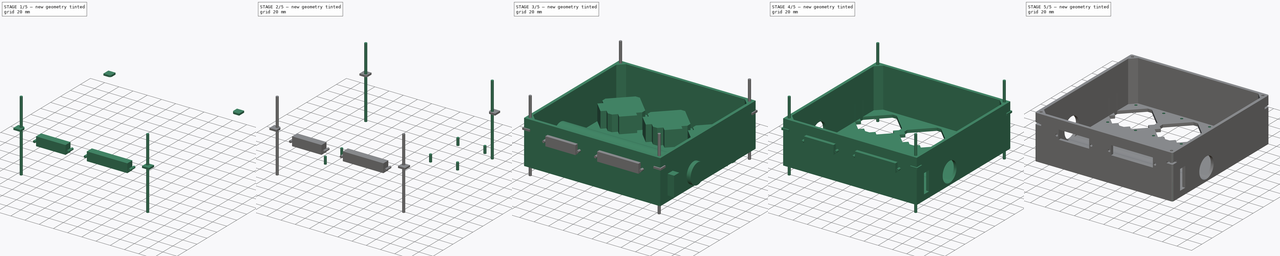
[diagram: build sequence overview — one tinted view per stage of 5, left to right]
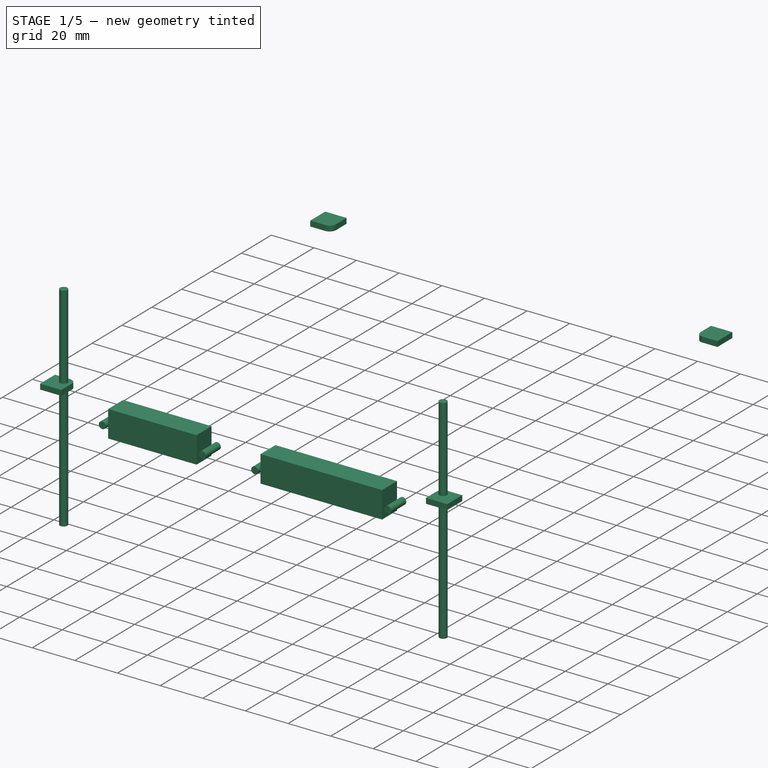
[diagram: stage 1 of 5 — iso view after this stage's code; geometry added in this stage tinted green]
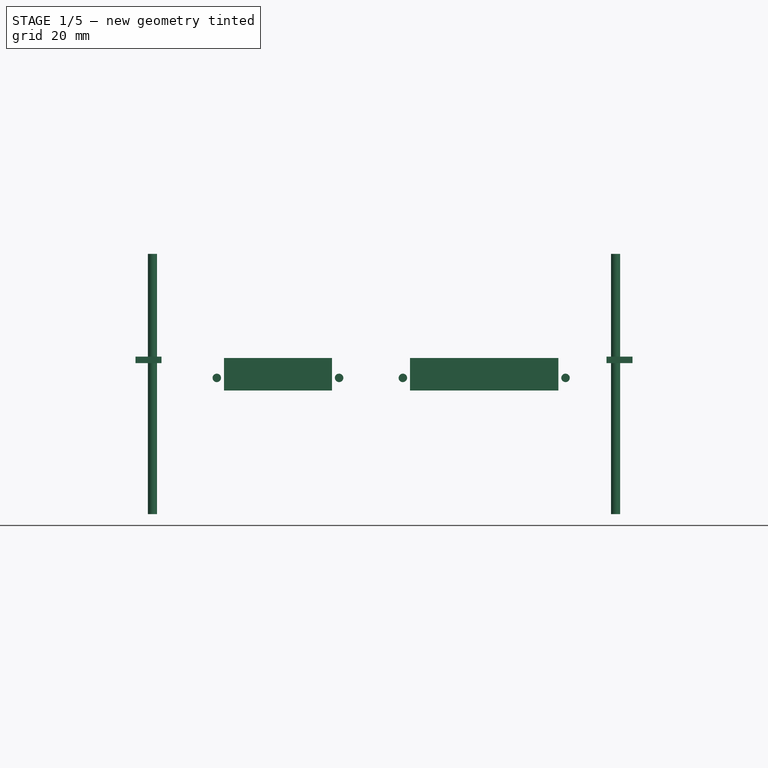
[diagram: stage 1 of 5 — front view after this stage's code; geometry added in this stage tinted green]
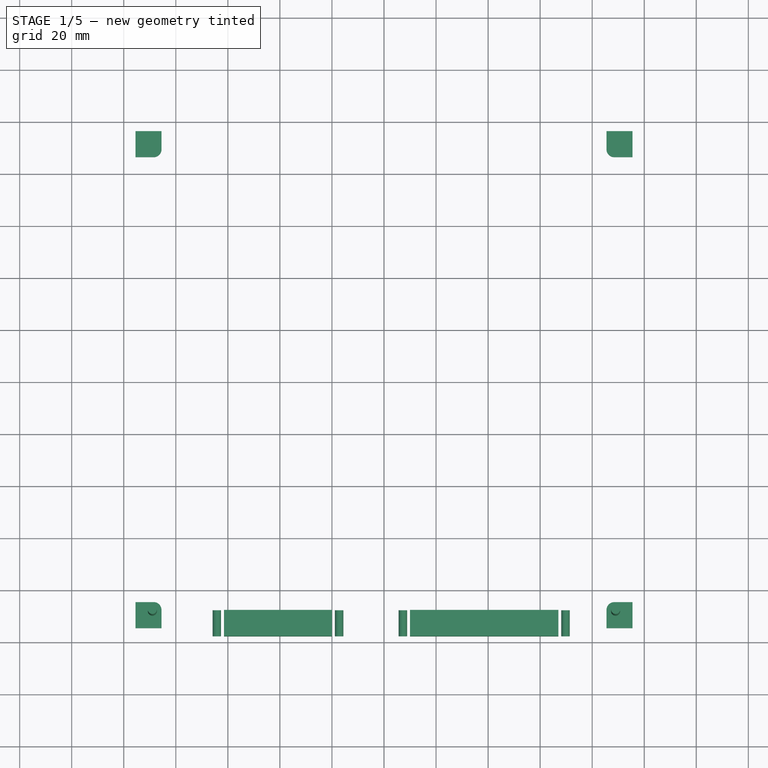
[diagram: stage 1 of 5 — top view after this stage's code; geometry added in this stage tinted green]
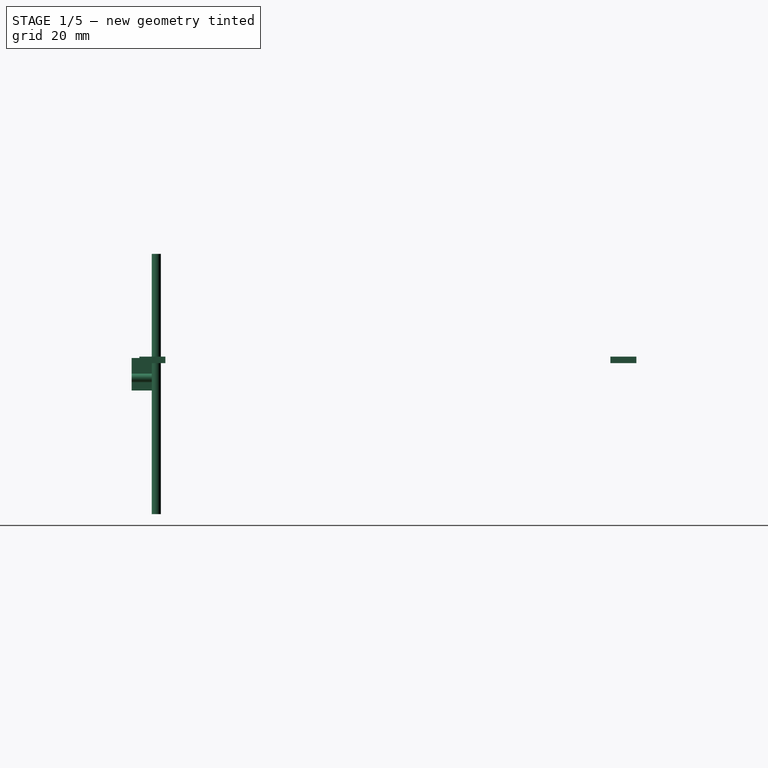
[diagram: stage 1 of 5 — right view after this stage's code; geometry added in this stage tinted green]
FCSTD DOCUMENT  (FreeCAD 1.0R38641 +678 (Git))
Label: pumps-box-v1.1
License: All rights reserved
LicenseURL: https://en.wikipedia.org/wiki/All_rights_reserved
objects: Part::Cylinder×23, Part::MultiFuse×16, Part::Cut×14, Part::Box×8, Part::Fillet×5, Sketcher::SketchObject×2, Part::Extrusion×2, Part::Fuse×2, Part::Chamfer×1, PartDesign::Body×1
note: 76 computed .brp shape members not serialized (recipe doc carries the construction recipe); baked Part::Feature solids carry a one-line shape summary decoded from their .brp

FEATURE [Part::Cylinder] Cylinder021
  Angle = 360
  AttacherType = Attacher::AttachEngine3D
  FirstAngle = 0
  Height = 100
  Placement = pos=(-89,-89,-12.5) rot=(0,0,1;0rad)
  Radius = 1.75
  SecondAngle = 0
FEATURE [Part::Cylinder] Cylinder022
  Angle = 360
  AttacherType = Attacher::AttachEngine3D
  FirstAngle = 0
  Height = 100
  Placement = pos=(89,-89,-12.5) rot=(0,0,1;0rad)
  Radius = 1.75
  SecondAngle = 0
FEATURE [Part::Box] Box010  label="Cube005"
  AttacherType = Attacher::AttachEngine3D
  Height = 2.5
  Length = 10
  Placement = pos=(-23.5,0,0) rot=(0,0,1;0rad)
  Width = 10
FEATURE [Part::Box] Box011  label="Cube006"
  AttacherType = Attacher::AttachEngine3D
  Height = 2.5
  Length = 10
  Placement = pos=(0,22.5,0) rot=(0,0,1;0rad)
  Width = 10
FEATURE [Part::Box] Box012  label="Cube007"
  AttacherType = Attacher::AttachEngine3D
  Height = 2.5
  Length = 10
  Placement = pos=(-25,23,0) rot=(0,0,1;0rad)
  Width = 10
FEATURE [Part::Box] Box013  label="Cube008"
  AttacherType = Attacher::AttachEngine3D
  Height = 2.5
  Length = 10
  Width = 10
FEATURE [Part::Fillet] Fillet005
  Base = -> Box010
  EdgeLinks = -> Box010 [Edge7]
  Edges = 1 edges r=3: [Edge7]
  Placement = pos=(-72,-95.5,45.5) rot=(0,0,1;0rad)
FEATURE [Part::Fillet] Fillet006
  Base = -> Box013
  EdgeLinks = -> Box013 [Edge3]
  Edges = 1 edges r=3: [Edge3]
  Placement = pos=(85.5,-95.5,45.5) rot=(0,0,1;0rad)
FEATURE [Part::Fillet] Fillet007
  Base = -> Box012
  EdgeLinks = -> Box012 [Edge5]
  Edges = 1 edges r=3: [Edge5]
  Placement = pos=(-70.5,62.5,45.5) rot=(0,0,1;0rad)
FEATURE [Part::Fillet] Fillet008
  Base = -> Box011
  EdgeLinks = -> Box011 [Edge1]
  Edges = 1 edges r=3: [Edge1]
  Placement = pos=(85.5,63,45.5) rot=(0,0,1;0rad)
FEATURE [Part::MultiFuse] Fusion018
  Shapes = -> [Fillet005,Fillet006]
FEATURE [Part::MultiFuse] Fusion019
  Shapes = -> [Fusion018,Fillet008]
FEATURE [Part::MultiFuse] Fusion020  label="Nut slot cuts001"
  Shapes = -> [Fusion019,Fillet007]
FEATURE [Sketcher::SketchObject] Sketch002  label="Connector Hole Sketch"
  ArcFitTolerance = 0
  AttachmentSupport = -> [Cut014]
  FullyConstrained = true
  MakeInternals = false
  MapMode = 5
  Placement = pos=(0,-94,0) rot=(1,0,0;1.5708rad)
  sketch-geometry (12):
    g0: LineSegment StartX=-61.5 StartY=0 StartZ=0 EndX=-20 EndY=0 EndZ=0
    g1: LineSegment StartX=-20 StartY=0 StartZ=0 EndX=-20 EndY=-12.5 EndZ=0
    g2: LineSegment StartX=-20 StartY=-12.5 StartZ=0 EndX=-61.5 EndY=-12.5 EndZ=0
    g3: LineSegment StartX=-61.5 StartY=-12.5 StartZ=0 EndX=-61.5 EndY=0 EndZ=0
    g4: LineSegment StartX=10 StartY=0 StartZ=0 EndX=67 EndY=0 EndZ=0
    g5: LineSegment StartX=67 StartY=0 StartZ=0 EndX=67 EndY=-12.5 EndZ=0
    g6: LineSegment StartX=67 StartY=-12.5 StartZ=0 EndX=10 EndY=-12.5 EndZ=0
    g7: LineSegment StartX=10 StartY=-12.5 StartZ=0 EndX=10 EndY=0 EndZ=0
    g8: Circle CenterX=-17.25 CenterY=-7.65 CenterZ=0 NormalX=0 NormalY=0 NormalZ=1 AngleXU=0 Radius=1.625
    g9: Circle CenterX=-64.25 CenterY=-7.65 CenterZ=0 NormalX=0 NormalY=0 NormalZ=1 AngleXU=0 Radius=1.625
    g10: Circle CenterX=7.25 CenterY=-7.65 CenterZ=0 NormalX=0 NormalY=0 NormalZ=1 AngleXU=0 Radius=1.625
    g11: Circle CenterX=69.75 CenterY=-7.65 CenterZ=0 NormalX=0 NormalY=0 NormalZ=1 AngleXU=0 Radius=1.625
  constraints (36):
    c: Coincident(g0,g1)
    c: Coincident(g1,g2)
    c: Coincident(g2,g3)
    c: Coincident(g3,g0)
    c: Horizontal(g0)
    c: Horizontal(g2)
    c: Vertical(g1)
    c: Vertical(g3)
    c: Coincident(g4,g5)
    c: Coincident(g5,g6)
    c: Coincident(g6,g7)
    c: Coincident(g7,g4)
    c: Horizontal(g4)
    c: Horizontal(g6)
    c: Vertical(g5)
    c: Vertical(g7)
    c: Distance(g0) = 41.5
    c: Distance(g1) = 12.5
    c: Distance(g5) = 12.5
    c: Distance(g4) = 57
    c: DistanceX(g0,g-1) = 20
    c: DistanceY(g0,g-1) = 0
    c: DistanceY(g4,g-1) = 0
    c: DistanceX(g-1,g4) = 10
    c: Equal(g11,g10)
    c: Equal(g11,g8)
    c: Equal(g11,g9)
    c: Diameter(g11) = 3.25
    c: DistanceX(g9,g2) = 2.75
    c: DistanceY(g2,g9) = 4.85
    c: DistanceY(g1,g8) = 4.85
    c: DistanceY(g6,g10) = 4.85
    c: DistanceY(g5,g11) = 4.85
    c: DistanceX(g1,g8) = 2.75
    c: DistanceX(g10,g6) = 2.75
    c: DistanceX(g5,g11) = 2.75
FEATURE [PartDesign::Body] Body001  label="Connector Hole Cuts"
  AllowCompound = false
  Group = -> [Sketch002]
  Origin = -> Origin001
  Placement = pos=(323,-3,52) rot=(1,0,0;1.5708rad)
FEATURE [Part::Extrusion] Extrude001
  Base = -> Sketch002
  Dir = (0,-1,2e-16)
  DirMode = 2
  FaceMakerClass = Part::FaceMakerBullseye
  FaceMakerMode = 3
  LengthFwd = 10
  LengthRev = 0
  Placement = pos=(0,5.5,47.5) rot=(0,0,1;0rad)
  Solid = true
  Symmetric = false
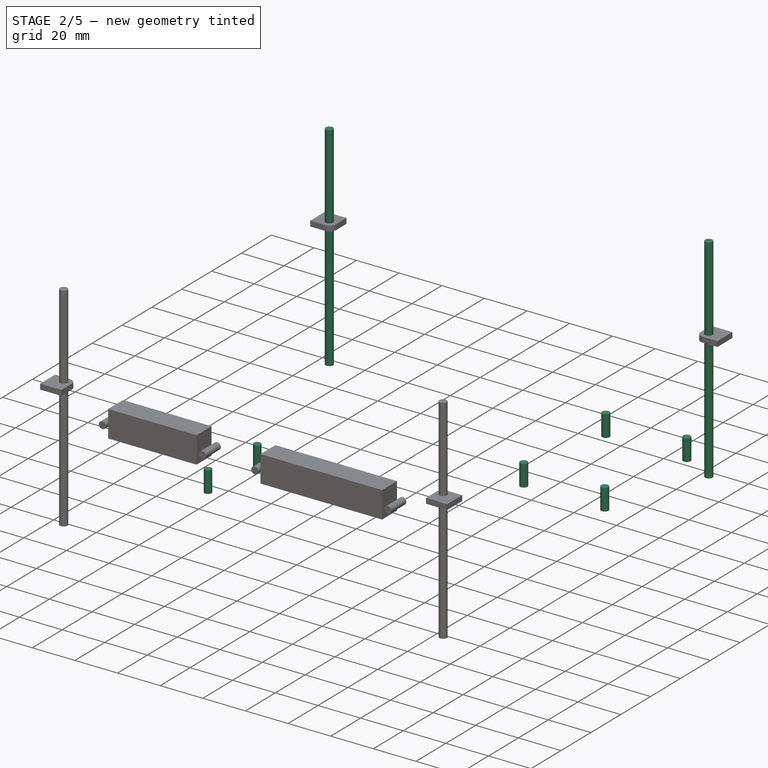
[diagram: stage 2 of 5 — iso view after this stage's code; geometry added in this stage tinted green]
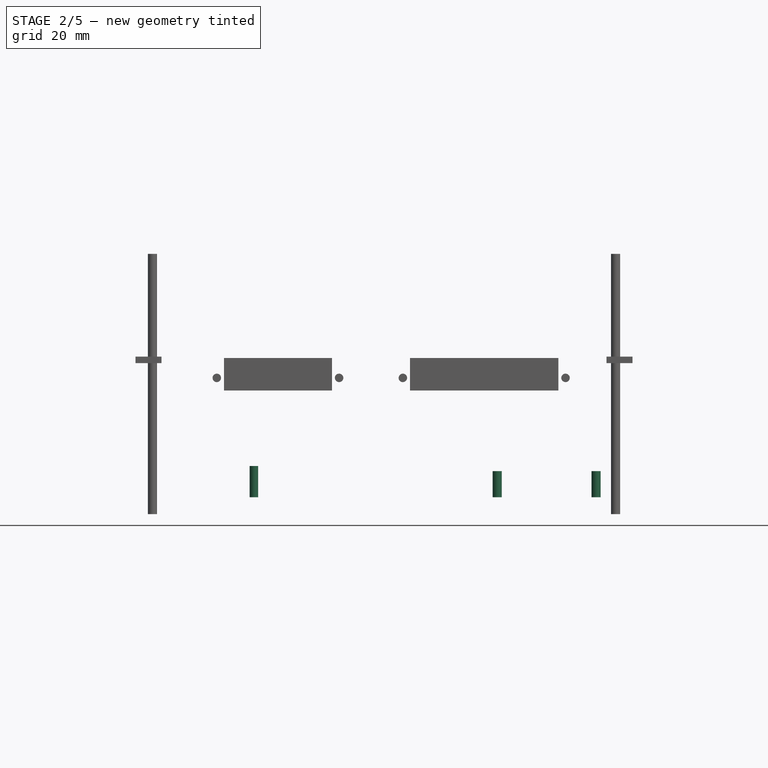
[diagram: stage 2 of 5 — front view after this stage's code; geometry added in this stage tinted green]
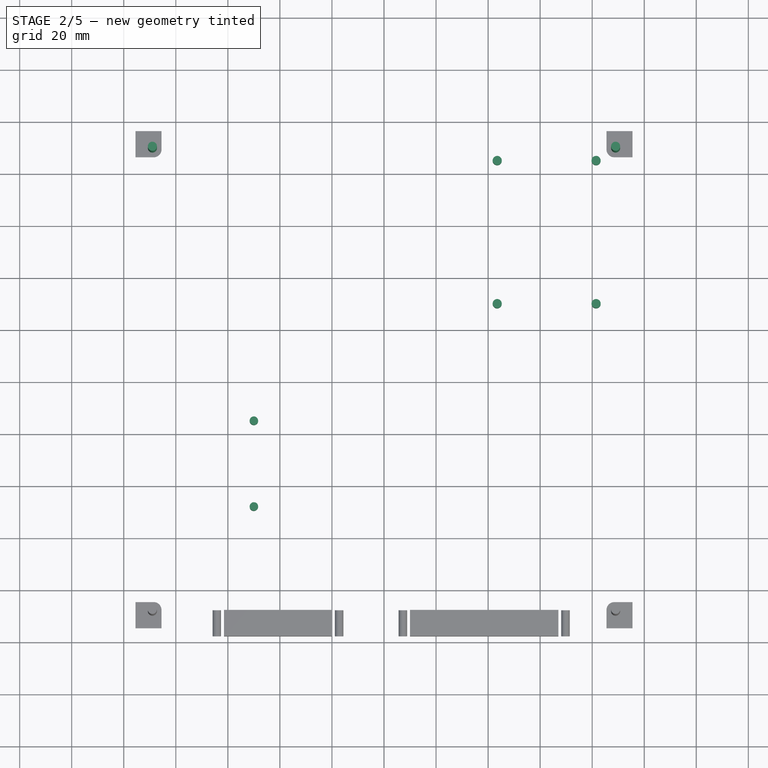
[diagram: stage 2 of 5 — top view after this stage's code; geometry added in this stage tinted green]
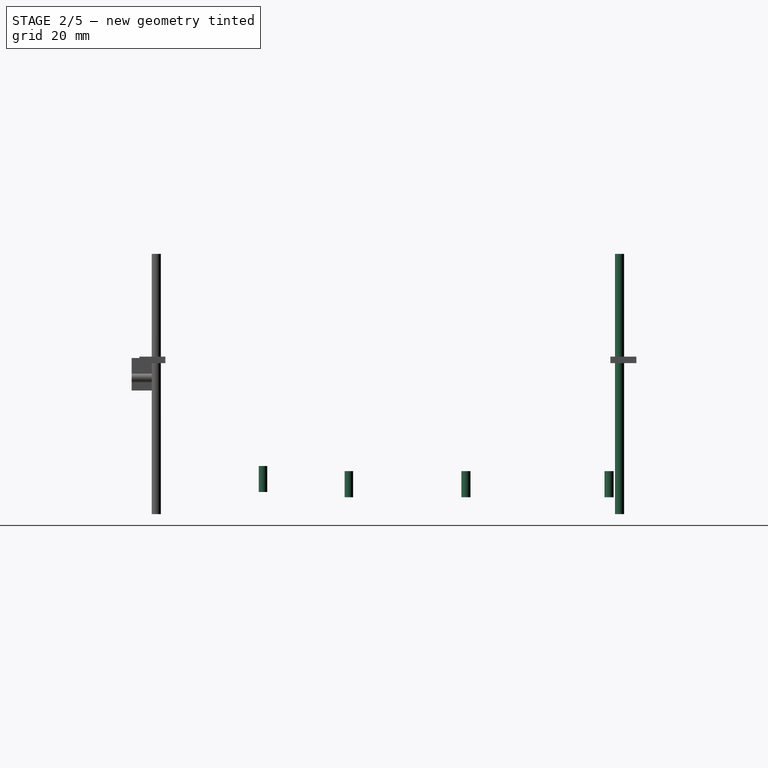
[diagram: stage 2 of 5 — right view after this stage's code; geometry added in this stage tinted green]
FEATURE [Part::Cylinder] Cylinder005  label="Circulation Pump Mounting Holes002"
  Angle = 360
  AttacherType = Attacher::AttachEngine3D
  FirstAngle = 0
  Height = 10
  Placement = pos=(-50,-15,-6) rot=(0,0,1;0rad)
  Radius = 1.625
  SecondAngle = 0
FEATURE [Part::Cylinder] Cylinder006  label="Circulation Pump Mounting Holes003"
  Angle = 360
  AttacherType = Attacher::AttachEngine3D
  FirstAngle = 0
  Height = 10
  Placement = pos=(-50,-48,-4) rot=(0,0,1;0rad)
  Radius = 1.625
  SecondAngle = 0
FEATURE [Part::Cylinder] Cylinder007  label="Stepper Screw Hole"
  Angle = 360
  AttacherType = Attacher::AttachEngine3D
  FirstAngle = 0
  Height = 10
  Placement = pos=(81.5,30,-6) rot=(0,0,1;0rad)
  Radius = 1.75
  SecondAngle = 0
FEATURE [Part::Cylinder] Cylinder008  label="Stepper Screw Hole001"
  Angle = 360
  AttacherType = Attacher::AttachEngine3D
  FirstAngle = 0
  Height = 10
  Placement = pos=(81.5,85,-6) rot=(0,0,1;0rad)
  Radius = 1.75
  SecondAngle = 0
FEATURE [Part::MultiFuse] Fusion006
  Shapes = -> [Cylinder007,Cylinder008]
FEATURE [Part::Cylinder] Cylinder009  label="Stepper Screw Hole002"
  Angle = 360
  AttacherType = Attacher::AttachEngine3D
  FirstAngle = 0
  Height = 10
  Placement = pos=(81.5,30,-6) rot=(0,0,1;0rad)
  Radius = 1.75
  SecondAngle = 0
FEATURE [Part::Cylinder] Cylinder010  label="Stepper Screw Hole003"
  Angle = 360
  AttacherType = Attacher::AttachEngine3D
  FirstAngle = 0
  Height = 10
  Placement = pos=(81.5,85,-6) rot=(0,0,1;0rad)
  Radius = 1.75
  SecondAngle = 0
FEATURE [Part::MultiFuse] Fusion007
  Placement = pos=(-38,0,0) rot=(0,0,1;0rad)
  Shapes = -> [Cylinder009,Cylinder010]
FEATURE [Part::MultiFuse] Fusion008  label="Stepper X Screw Hole Cuts"
  Shapes = -> [Fusion006,Fusion007]
FEATURE [Part::Cylinder] Cylinder019
  Angle = 360
  AttacherType = Attacher::AttachEngine3D
  FirstAngle = 0
  Height = 100
  Placement = pos=(-89,-89,-12.5) rot=(0,0,1;0rad)
  Radius = 1.75
  SecondAngle = 0
FEATURE [Part::Cylinder] Cylinder020
  Angle = 360
  AttacherType = Attacher::AttachEngine3D
  FirstAngle = 0
  Height = 100
  Placement = pos=(89,-89,-12.5) rot=(0,0,1;0rad)
  Radius = 1.75
  SecondAngle = 0
FEATURE [Part::MultiFuse] Fusion015
  Shapes = -> [Cylinder019,Cylinder020]
FEATURE [Part::MultiFuse] Fusion016
  Placement = pos=(0,178,0) rot=(0,0,1;0rad)
  Shapes = -> [Cylinder021,Cylinder022]
FEATURE [Part::MultiFuse] Fusion017  label="Corner Screw Holes001"
  Shapes = -> [Fusion015,Fusion016]
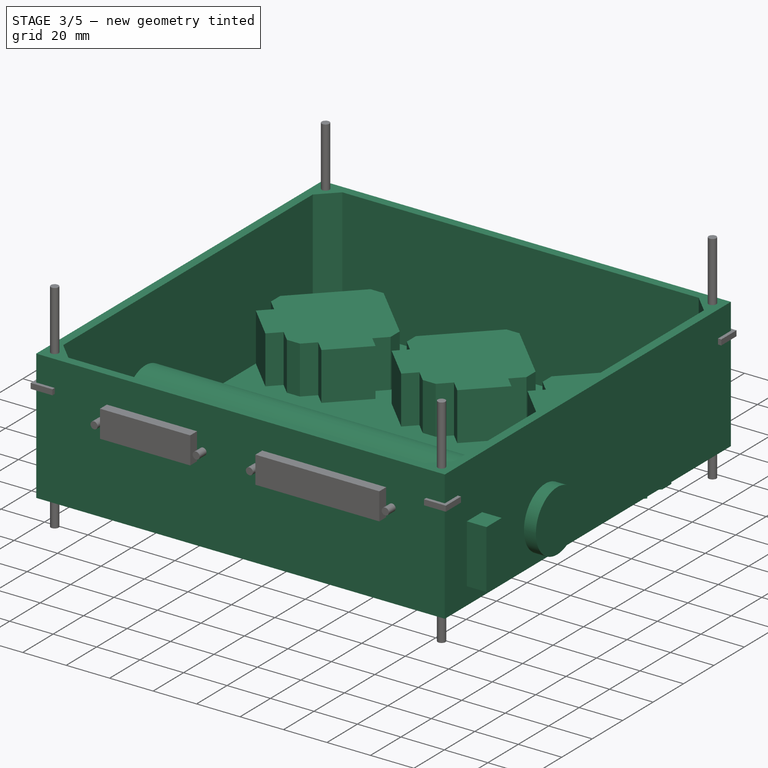
[diagram: stage 3 of 5 — iso view after this stage's code; geometry added in this stage tinted green]
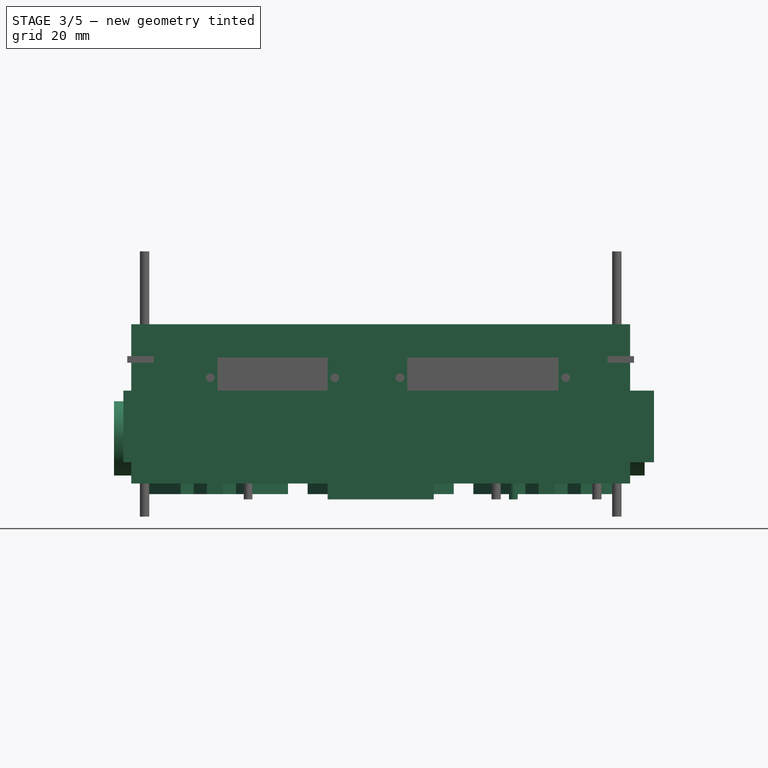
[diagram: stage 3 of 5 — front view after this stage's code; geometry added in this stage tinted green]
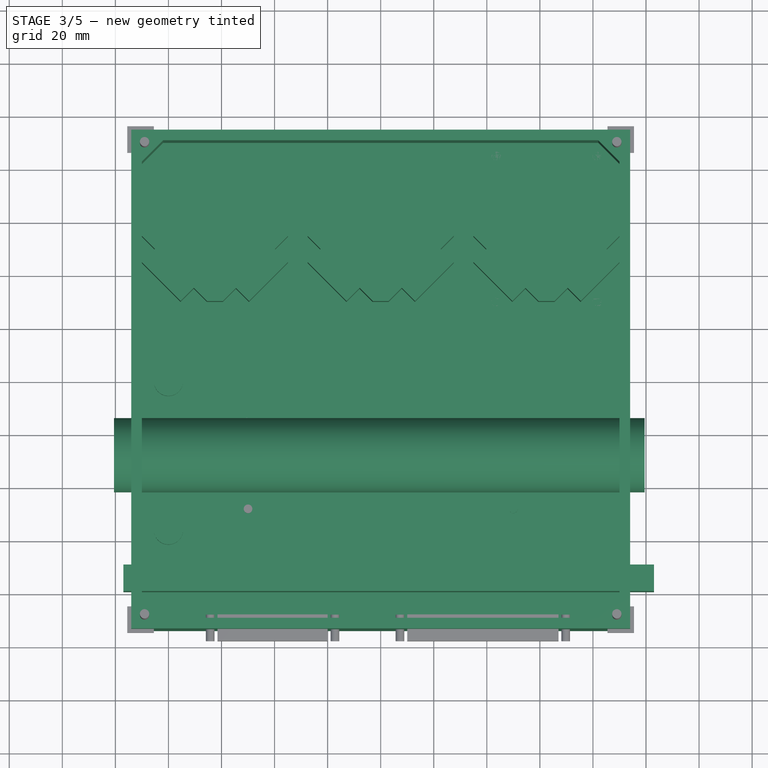
[diagram: stage 3 of 5 — top view after this stage's code; geometry added in this stage tinted green]
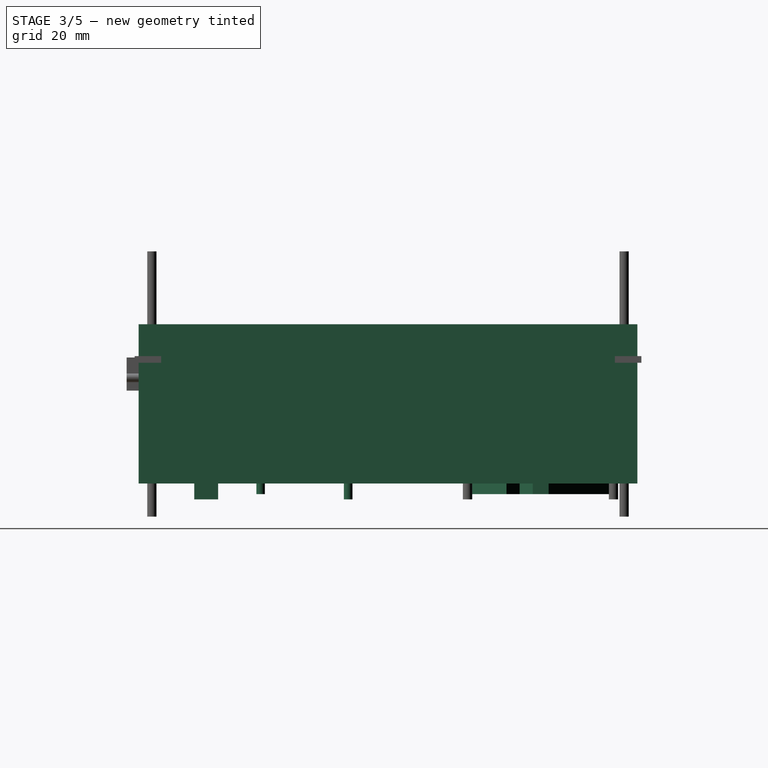
[diagram: stage 3 of 5 — right view after this stage's code; geometry added in this stage tinted green]
FEATURE [Part::Box] Box005  label="Box base"
  AttacherType = Attacher::AttachEngine3D
  Height = 60
  Length = 188
  Placement = pos=(-94,-94,0) rot=(0,0,1;0rad)
  Width = 188
FEATURE [Part::Box] Box006  label="Box Cut"
  AttacherType = Attacher::AttachEngine3D
  Height = 56
  Length = 180
  Width = 180
FEATURE [Part::Chamfer] Chamfer001
  Base = -> Box006
  EdgeLinks = -> Box006 [Edge1,Edge3,Edge5,Edge7]
  Edges = 4 edges r=8: [Edge1,Edge3,Edge5,Edge7]
  Placement = pos=(-90,-90,4) rot=(0,0,1;0rad)
FEATURE [Part::Cut] Cut002
  Base = -> Box005
  Tool = -> Chamfer001
FEATURE [Sketcher::SketchObject] Sketch013  label="Stepper Holes002"
  ArcFitTolerance = 0
  AttachmentOffset = pos=(94,94,0) rot=(0,0,1;0rad)
  FullyConstrained = true
  MakeInternals = false
  MapMode = 5
  Placement = pos=(1,7,-78) rot=(0,0,1;0rad)
  sketch-geometry (48):
    g0: LineSegment StartX=-90.0507 StartY=54.5507 StartZ=0 EndX=-90.0507 EndY=60.5507 EndZ=0
    g1: LineSegment StartX=-90.0507 StartY=60.5507 StartZ=0 EndX=-65.5424 EndY=85.0591 EndZ=0
    g2: LineSegment StartX=-65.5424 StartY=85.0591 StartZ=0 EndX=-59.5424 EndY=85.0591 EndZ=0
    g3: LineSegment StartX=-59.5424 StartY=85.0591 StartZ=0 EndX=-34.9493 EndY=60.5507 EndZ=0
    g4: LineSegment StartX=-34.9493 StartY=60.5507 StartZ=0 EndX=-34.9493 EndY=54.5507 EndZ=0
    g5: LineSegment StartX=-59.5 StartY=30 StartZ=0 EndX=-65.5 EndY=30 EndZ=0
    g6: LineSegment StartX=-27.5507 StartY=60.5507 StartZ=0 EndX=-3.04243 EndY=85.0591 EndZ=0
    g7: LineSegment StartX=-3.04243 StartY=85.0591 StartZ=0 EndX=2.95757 EndY=85.0591 EndZ=0
    g8: LineSegment StartX=2.95757 StartY=85.0591 StartZ=0 EndX=27.5507 EndY=60.5507 EndZ=0
    g9: LineSegment StartX=27.5507 StartY=60.5507 StartZ=0 EndX=27.5507 EndY=54.5507 EndZ=0
    g10: LineSegment StartX=3 StartY=30 StartZ=0 EndX=-3 EndY=30 EndZ=0
    g11: LineSegment StartX=-27.5507 StartY=54.5507 StartZ=0 EndX=-27.5507 EndY=60.5507 EndZ=0
    g12: LineSegment StartX=34.9493 StartY=54.5507 StartZ=0 EndX=34.9493 EndY=60.5507 EndZ=0
    g13: LineSegment StartX=34.9493 StartY=60.5507 StartZ=0 EndX=59.4576 EndY=85.0591 EndZ=0
    g14: LineSegment StartX=59.4576 StartY=85.0591 StartZ=0 EndX=65.4576 EndY=85.0591 EndZ=0
    g15: LineSegment StartX=65.4576 StartY=85.0591 StartZ=0 EndX=90.0507 EndY=60.5507 EndZ=0
    g16: LineSegment StartX=90.0507 StartY=60.5507 StartZ=0 EndX=90.0507 EndY=54.5507 EndZ=0
    g17: LineSegment StartX=65.5 StartY=30 StartZ=0 EndX=59.5 EndY=30 EndZ=0
    g18: LineSegment StartX=-54.5503 StartY=34.9497 StartZ=0 EndX=-49.6005 EndY=30 EndZ=0
    g19: LineSegment StartX=-34.9493 StartY=44.6513 StartZ=0 EndX=-49.6005 EndY=30 EndZ=0
    g20: LineSegment StartX=-34.9493 StartY=44.6513 StartZ=0 EndX=-39.899 EndY=49.601 EndZ=0
    g21: LineSegment StartX=7.94975 StartY=34.9497 StartZ=0 EndX=12.8995 EndY=30 EndZ=0
    g22: LineSegment StartX=12.8995 StartY=30 StartZ=0 EndX=27.5507 EndY=44.6513 EndZ=0
    g23: LineSegment StartX=27.5507 StartY=44.6513 StartZ=0 EndX=22.601 EndY=49.601 EndZ=0
    g24: LineSegment StartX=70.4497 StartY=34.9497 StartZ=0 EndX=75.3995 EndY=30 EndZ=0
    g25: LineSegment StartX=75.3995 StartY=30 StartZ=0 EndX=90.0507 EndY=44.6513 EndZ=0
    g26: LineSegment StartX=90.0507 StartY=44.6513 StartZ=0 EndX=85.101 EndY=49.601 EndZ=0
    g27: LineSegment StartX=65.5 StartY=30 StartZ=0 EndX=70.4497 EndY=34.9497 EndZ=0
    g28: LineSegment StartX=85.101 StartY=49.601 StartZ=0 EndX=90.0507 EndY=54.5507 EndZ=0
    g29: LineSegment StartX=22.601 StartY=49.601 StartZ=0 EndX=27.5507 EndY=54.5507 EndZ=0
    g30: LineSegment StartX=3 StartY=30 StartZ=0 EndX=7.94975 EndY=34.9497 EndZ=0
    g31: LineSegment StartX=-59.5 StartY=30 StartZ=0 EndX=-54.5503 EndY=34.9497 EndZ=0
    g32: LineSegment StartX=-34.9493 StartY=54.5507 StartZ=0 EndX=-39.899 EndY=49.601 EndZ=0
    g33: LineSegment StartX=-85.101 StartY=49.601 StartZ=0 EndX=-90.0507 EndY=44.6513 EndZ=0
    g34: LineSegment StartX=-90.0507 StartY=44.6513 StartZ=0 EndX=-75.3995 EndY=30 EndZ=0
    g35: LineSegment StartX=-75.3995 StartY=30 StartZ=0 EndX=-70.4497 EndY=34.9497 EndZ=0
    g36: LineSegment StartX=-90.0507 StartY=54.5507 StartZ=0 EndX=-85.101 EndY=49.601 EndZ=0
    g37: LineSegment StartX=-70.4497 StartY=34.9497 StartZ=0 EndX=-65.5 EndY=30 EndZ=0
    g38: LineSegment StartX=-3 StartY=30 StartZ=0 EndX=-7.94975 EndY=34.9497 EndZ=0
    g39: LineSegment StartX=-7.94975 StartY=34.9497 StartZ=0 EndX=-12.8995 EndY=30 EndZ=0
    g40: LineSegment StartX=-12.8995 StartY=30 StartZ=0 EndX=-27.5507 EndY=44.6513 EndZ=0
    g41: LineSegment StartX=-27.5507 StartY=44.6513 StartZ=0 EndX=-22.601 EndY=49.601 EndZ=0
    g42: LineSegment StartX=-22.601 StartY=49.601 StartZ=0 EndX=-27.5507 EndY=54.5507 EndZ=0
    g43: LineSegment StartX=59.5 StartY=30 StartZ=0 EndX=54.5503 EndY=34.9497 EndZ=0
    g44: LineSegment StartX=54.5503 StartY=34.9497 StartZ=0 EndX=49.6005 EndY=30 EndZ=0
    g45: LineSegment StartX=49.6005 StartY=30 StartZ=0 EndX=34.9493 EndY=44.6513 EndZ=0
    g46: LineSegment StartX=34.9493 StartY=44.6513 StartZ=0 EndX=39.899 EndY=49.601 EndZ=0
    g47: LineSegment StartX=39.899 StartY=49.601 StartZ=0 EndX=34.9493 EndY=54.5507 EndZ=0
  constraints (144):
    c: DistanceY(g-1,g5) = 30
    c: DistanceX(g5,g-1) = 65.5
    c: DistanceY(g5,g5) = 0
    c: DistanceX(g5,g5) = 6
    c: Angle(g31,g5,g5) = 2.35619
    c: Distance(g31) = 7
    c: Distance(g18) = 7
    c: Perpendicular(g18,g31)
    c: Perpendicular(g4,g5)
    c: Perpendicular(g0,g5)
    c: Parallel(g5,g2)
    c: Coincident(g31,g5)
    c: Coincident(g18,g31)
    c: Coincident(g18,g19)
    c: Distance(g19) = 20.72
    c: Coincident(g20,g19)
    c: Distance(g32) = 7
    c: Perpendicular(g19,g18)
    c: Perpendicular(g20,g19)
    c: Distance(g20) = 7
    c: Coincident(g20,g32)
    c: Perpendicular(g32,g20)
    c: Coincident(g4,g32)
    c: Coincident(g3,g4)
    c: Distance(g4) = 6
    c: Coincident(g2,g3)
    c: Coincident(g2,g1)
    c: Coincident(g0,g1)
    c: Distance(g0) = 6
    c: Distance(g1) = 34.66
    c: Distance(g2) = 6
    c: DistanceX(g10,g-1) = 3
    c: DistanceY(g-1,g10) = 30
    c: Equal(g5,g10)
    c: Coincident(g21,g30)
    c: Coincident(g30,g10)
    c: Parallel(g5,g10)
    c: Coincident(g6,g11)
    c: Coincident(g6,g7)
    c: Coincident(g8,g7)
    c: Coincident(g9,g8)
    c: Coincident(g29,g9)
    c: Coincident(g29,g23)
    c: Coincident(g22,g23)
    c: Coincident(g22,g21)
    c: Parallel(g0,g11)
    c: Equal(g0,g11)
    c: Parallel(g1,g6)
    c: Equal(g1,g6)
    c: Equal(g2,g7)
    c: Parallel(g7,g2)
    c: Equal(g3,g8)
    c: Parallel(g3,g8)
    c: Equal(g31,g30)
    c: Parallel(g31,g30)
    c: Equal(g18,g21)
    c: Parallel(g18,g21)
    c: Equal(g19,g22)
    c: Parallel(g22,g19)
    c: Equal(g20,g23)
    c: Parallel(g20,g23)
    c: Equal(g32,g29)
    c: Parallel(g32,g29)
    c: DistanceX(g-1,g17) = 59.5
    c: DistanceY(g-1,g17) = 30
    c: Coincident(g27,g17)
    c: Coincident(g24,g27)
    c: Coincident(g24,g25)
    c: Coincident(g25,g26)
    c: Coincident(g26,g28)
    c: Coincident(g16,g28)
    c: Coincident(g15,g16)
    c: Coincident(g14,g15)
    c: Coincident(g13,g14)
    c: Coincident(g12,g13)
    c: Equal(g17,g5)
    c: Parallel(g17,g5)
    c: Equal(g0,g12)
    c: Parallel(g0,g12)
    c: Equal(g1,g13)
    c: Parallel(g1,g13)
    c: Equal(g2,g14)
    c: Parallel(g2,g14)
    c: Equal(g3,g15)
    c: Parallel(g3,g15)
    c: Equal(g4,g16)
    c: Parallel(g4,g16)
    c: Equal(g32,g28)
    c: Parallel(g32,g28)
    c: Equal(g20,g26)
    c: Parallel(g20,g26)
    c: Equal(g25,g19)
    c: Parallel(g25,g19)
    c: Equal(g24,g18)
    c: Parallel(g24,g18)
    c: Coincident(g34,g33)
    c: Coincident(g35,g34)
    c: Coincident(g36,g0)
    c: Coincident(g36,g33)
    c: Coincident(g37,g35)
    c: Coincident(g37,g5)
    c: Perpendicular(g31,g37)
    c: Distance(g37) = 7
    c: Perpendicular(g37,g35)
    c: Distance(g35) = 7
    c: Perpendicular(g35,g34)
    c: Parallel(g36,g37)
    c: Distance(g36) = 7
    c: Perpendicular(g33,g36)
    c: Distance(g33) = 7
    c: Distance(g34) = 20.72
    c: Parallel(g31,g1)
    c: Coincident(g38,g10)
    c: Coincident(g39,g38)
    c: Coincident(g40,g39)
    c: Coincident(g41,g40)
    c: Coincident(g42,g41)
    c: Coincident(g42,g11)
    c: Coincident(g43,g17)
    c: Coincident(g44,g43)
    c: Coincident(g45,g44)
    c: Coincident(g46,g45)
    c: Coincident(g47,g46)
    c: Coincident(g47,g12)
    c: Equal(g37,g38)
    c: Parallel(g37,g38)
    c: Equal(g35,g39)
    c: Parallel(g39,g35)
    c: Equal(g40,g34)
    c: Parallel(g40,g34)
    c: Equal(g33,g41)
    c: Parallel(g33,g41)
    c: Equal(g42,g36)
    c: Parallel(g36,g42)
    c: Equal(g37,g43)
    c: Parallel(g37,g43)
    c: Equal(g44,g35)
    c: Parallel(g35,g44)
    c: Perpendicular(g45,g44)
    c: Perpendicular(g46,g45)
    c: Perpendicular(g47,g46)
    c: Equal(g34,g45)
    c: Equal(g33,g46)
    c: Equal(g36,g47)
FEATURE [Part::Extrusion] Extrude
  Base = -> Sketch013
  Dir = (0,0,1)
  DirMode = 2
  FaceMakerClass = Part::FaceMakerBullseye
  FaceMakerMode = 3
  LengthFwd = 30
  LengthRev = 0
  Placement = pos=(-1,-7,74) rot=(0,0,1;0rad)
  Solid = true
  Symmetric = false
FEATURE [Part::Cylinder] Cylinder  label="Barrel Plug cut 1"
  Angle = 360
  AttacherType = Attacher::AttachEngine3D
  FirstAngle = 0
  Height = 10
  Placement = pos=(-80,0,0) rot=(0,0,1;0rad)
  Radius = 5.5
  SecondAngle = 0
FEATURE [Part::Cylinder] Cylinder001  label="Barrel Plug cut 002"
  Angle = 360
  AttacherType = Attacher::AttachEngine3D
  FirstAngle = 0
  Height = 10
  Placement = pos=(-80,-56,0) rot=(0,0,1;0rad)
  Radius = 5.5
  SecondAngle = 0
FEATURE [Part::Box] Box007  label="C Support Cut"
  AttacherType = Attacher::AttachEngine3D
  Height = 30
  Length = 40
  Placement = pos=(-20,-73,-6) rot=(0,0,1;0rad)
  Width = 9
FEATURE [Part::Box] Box008  label="Stand Support Cuts"
  AttacherType = Attacher::AttachEngine3D
  Height = 27
  Length = 200
  Placement = pos=(-97,-79.5,8) rot=(0,0,1;0rad)
  Width = 10
FEATURE [Part::Cylinder] Cylinder002  label="Cylinder"
  Angle = 360
  AttacherType = Attacher::AttachEngine3D
  FirstAngle = 0
  Height = 200
  Placement = pos=(99.5,-28,17) rot=(0,1,0;4.71239rad)
  Radius = 14
  SecondAngle = 0
FEATURE [Part::Cylinder] Cylinder003  label="Circulation Pump Mounting Holes"
  Angle = 360
  AttacherType = Attacher::AttachEngine3D
  FirstAngle = 0
  Height = 10
  Placement = pos=(-50,-15,-6) rot=(0,0,1;0rad)
  Radius = 1.625
  SecondAngle = 0
FEATURE [Part::Cylinder] Cylinder004  label="Circulation Pump Mounting Holes001"
  Angle = 360
  AttacherType = Attacher::AttachEngine3D
  FirstAngle = 0
  Height = 10
  Placement = pos=(-50,-48,-4) rot=(0,0,1;0rad)
  Radius = 1.625
  SecondAngle = 0
FEATURE [Part::Fuse] Fusion003
  Base = -> Cylinder003
  Tool = -> Cylinder004
FEATURE [Part::Fuse] Fusion004
  Base = -> Cylinder005
  Placement = pos=(100,0,0) rot=(0,0,1;0rad)
  Tool = -> Cylinder006
FEATURE [Part::MultiFuse] Fusion005  label="Circulation Pumps Mounting Holes"
  Shapes = -> [Fusion003,Fusion004]
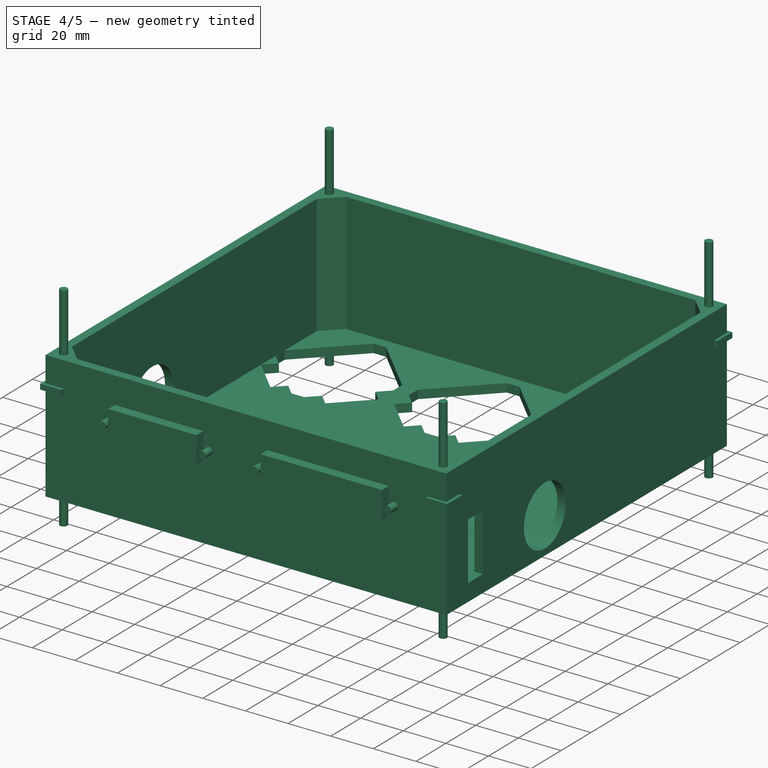
[diagram: stage 4 of 5 — iso view after this stage's code; geometry added in this stage tinted green]
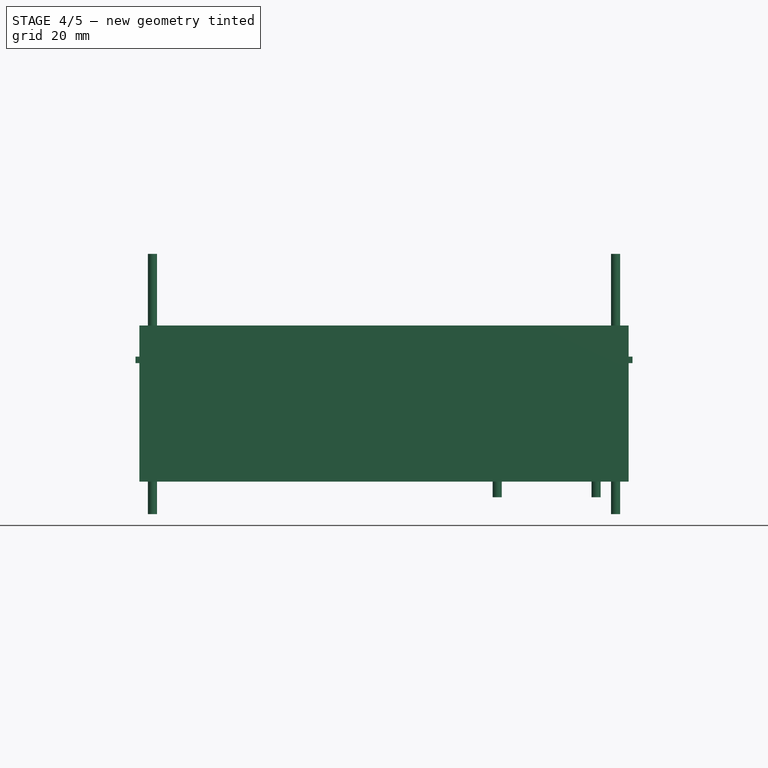
[diagram: stage 4 of 5 — front view after this stage's code; geometry added in this stage tinted green]
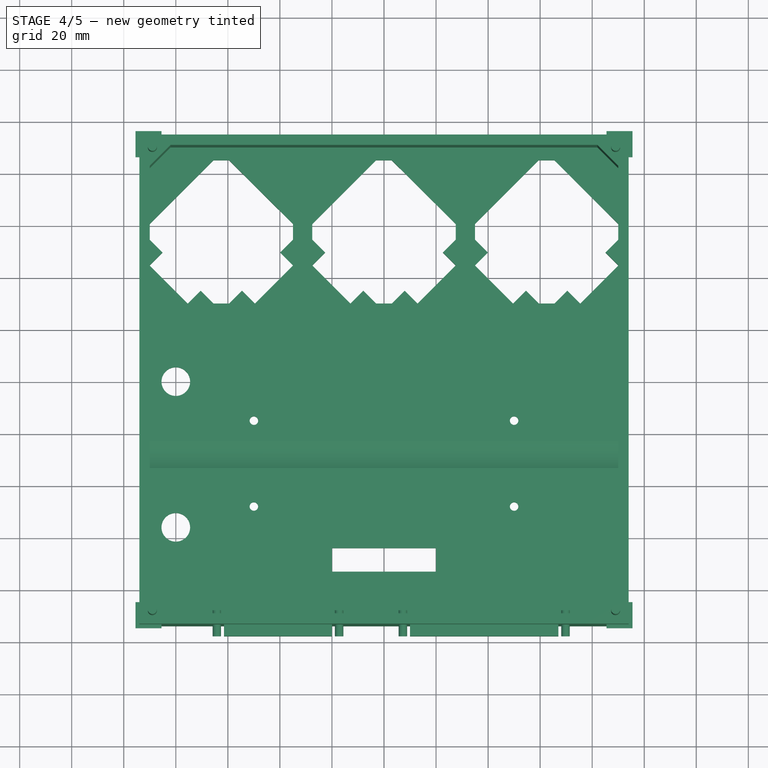
[diagram: stage 4 of 5 — top view after this stage's code; geometry added in this stage tinted green]
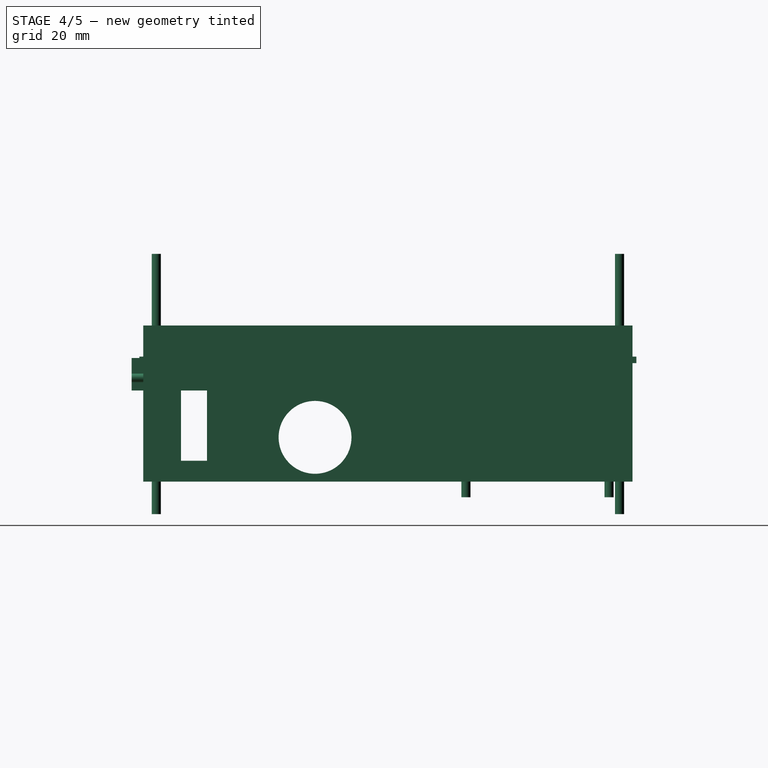
[diagram: stage 4 of 5 — right view after this stage's code; geometry added in this stage tinted green]
FEATURE [Part::Cut] Cut003
  Base = -> Cut002
  Tool = -> Extrude
FEATURE [Part::Cut] Cut004
  Base = -> Cut003
  Tool = -> Cylinder
FEATURE [Part::Cut] Cut005
  Base = -> Cut004
  Tool = -> Cylinder001
FEATURE [Part::Cut] Cut006
  Base = -> Cut005
  Tool = -> Box007
FEATURE [Part::Cut] Cut007
  Base = -> Cut006
  Tool = -> Box008
FEATURE [Part::Cut] Cut008
  Base = -> Cut007
  Tool = -> Cylinder002
FEATURE [Part::Cut] Cut009
  Base = -> Cut008
  Tool = -> Fusion005
FEATURE [Part::Cylinder] Cylinder011  label="Stepper Screw Hole004"
  Angle = 360
  AttacherType = Attacher::AttachEngine3D
  FirstAngle = 0
  Height = 10
  Placement = pos=(81.5,30,-6) rot=(0,0,1;0rad)
  Radius = 1.75
  SecondAngle = 0
FEATURE [Part::Cylinder] Cylinder012  label="Stepper Screw Hole005"
  Angle = 360
  AttacherType = Attacher::AttachEngine3D
  FirstAngle = 0
  Height = 10
  Placement = pos=(81.5,85,-6) rot=(0,0,1;0rad)
  Radius = 1.75
  SecondAngle = 0
FEATURE [Part::Cylinder] Cylinder013  label="Stepper Screw Hole006"
  Angle = 360
  AttacherType = Attacher::AttachEngine3D
  FirstAngle = 0
  Height = 10
  Placement = pos=(81.5,30,-6) rot=(0,0,1;0rad)
  Radius = 1.75
  SecondAngle = 0
FEATURE [Part::Cylinder] Cylinder014  label="Stepper Screw Hole007"
  Angle = 360
  AttacherType = Attacher::AttachEngine3D
  FirstAngle = 0
  Height = 10
  Placement = pos=(81.5,85,-6) rot=(0,0,1;0rad)
  Radius = 1.75
  SecondAngle = 0
FEATURE [Part::MultiFuse] Fusion009
  Shapes = -> [Cylinder011,Cylinder012]
FEATURE [Part::MultiFuse] Fusion010
  Placement = pos=(-38,0,0) rot=(0,0,1;0rad)
  Shapes = -> [Cylinder013,Cylinder014]
FEATURE [Part::Cut] Cut010
  Base = -> Cut009
  Tool = -> Fusion008
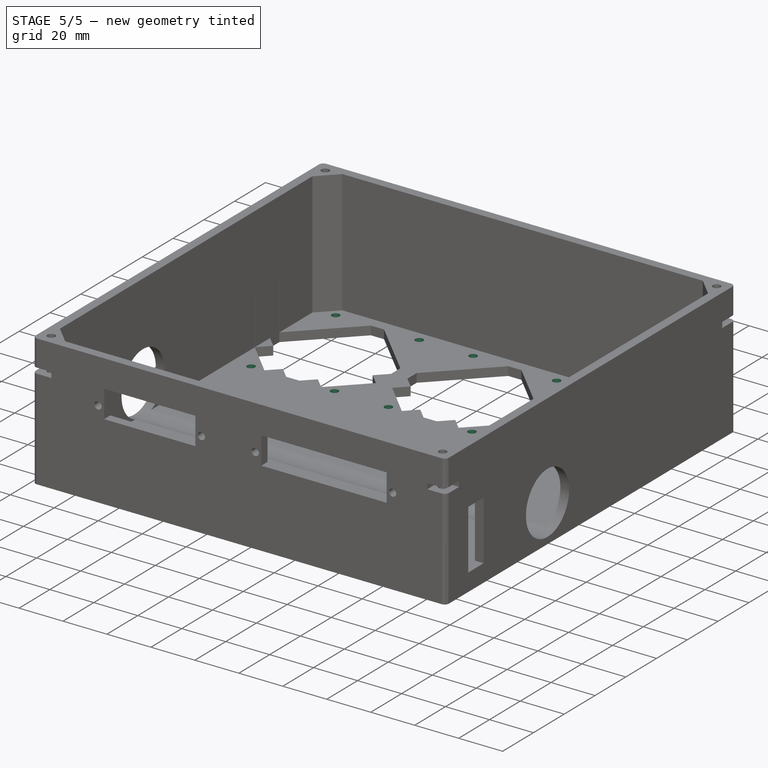
[diagram: stage 5 of 5 — iso view after this stage's code; geometry added in this stage tinted green]
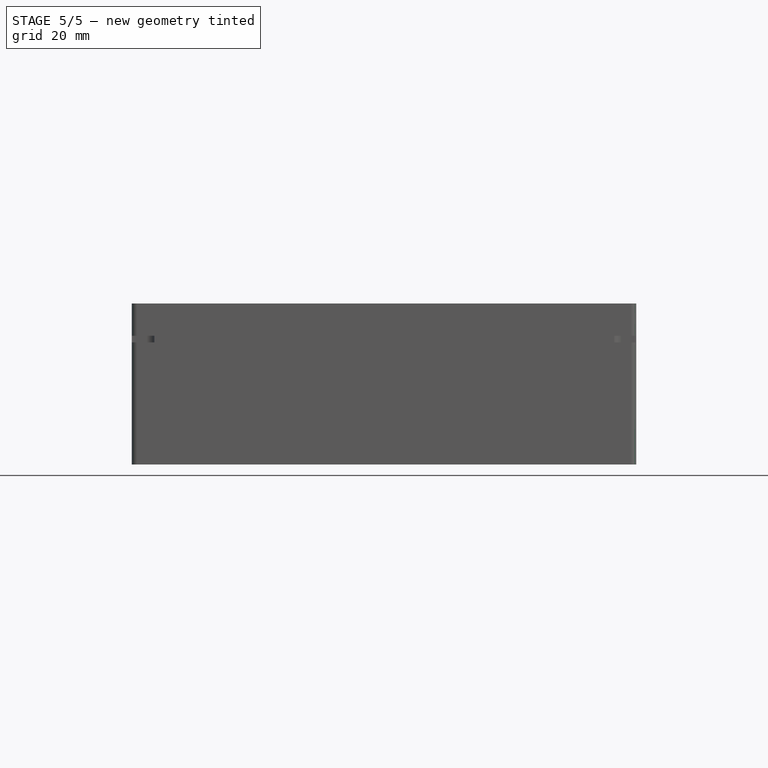
[diagram: stage 5 of 5 — front view after this stage's code; geometry added in this stage tinted green]
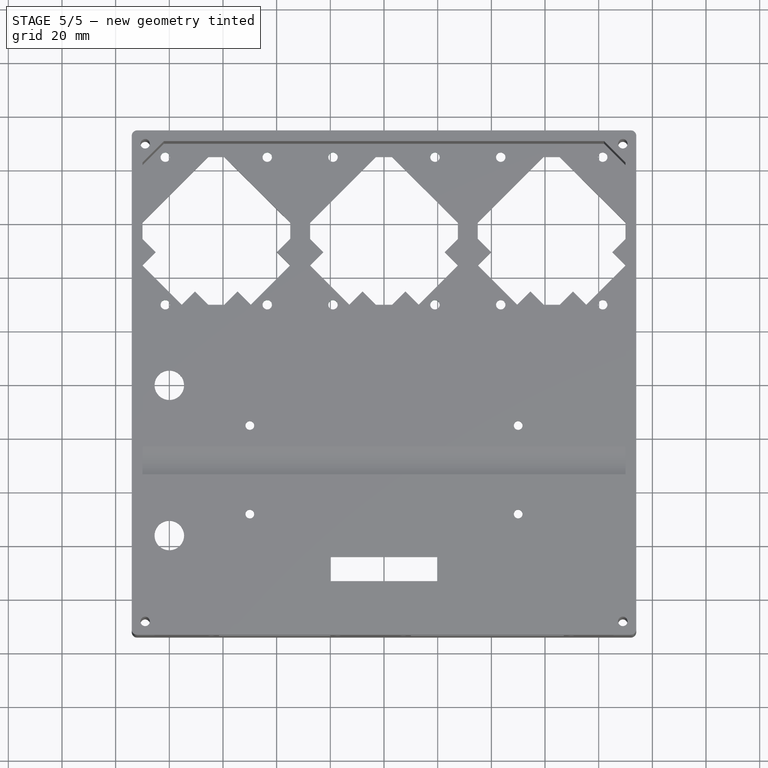
[diagram: stage 5 of 5 — top view after this stage's code; geometry added in this stage tinted green]
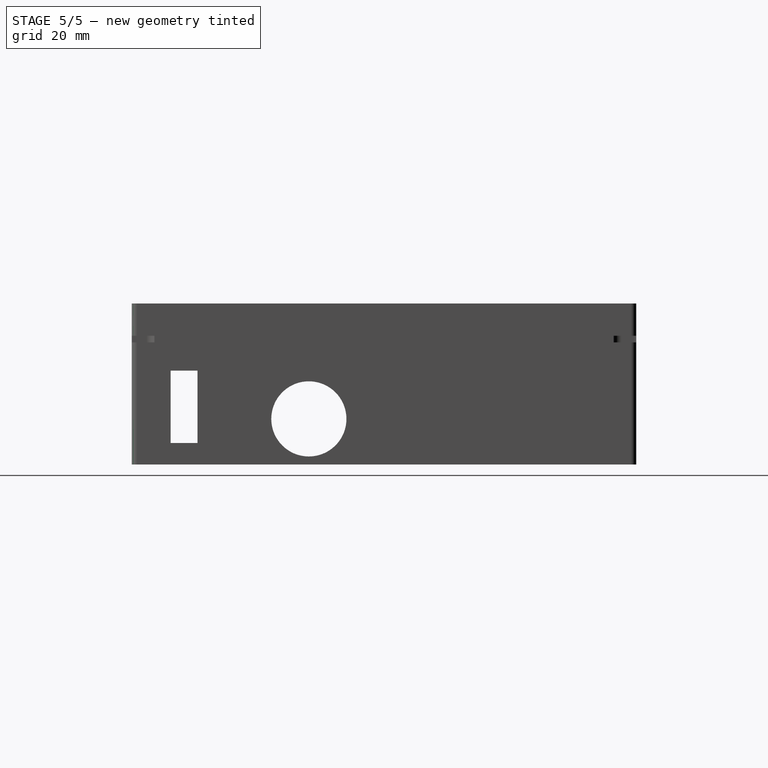
[diagram: stage 5 of 5 — right view after this stage's code; geometry added in this stage tinted green]
FEATURE [Part::MultiFuse] Fusion011  label="Stepper Y Screw Hole Cuts001"
  Placement = pos=(-62.5,0,0) rot=(0,0,1;0rad)
  Shapes = -> [Fusion009,Fusion010]
FEATURE [Part::Cylinder] Cylinder015  label="Stepper Screw Hole008"
  Angle = 360
  AttacherType = Attacher::AttachEngine3D
  FirstAngle = 0
  Height = 10
  Placement = pos=(81.5,30,-6) rot=(0,0,1;0rad)
  Radius = 1.75
  SecondAngle = 0
FEATURE [Part::Cylinder] Cylinder016  label="Stepper Screw Hole009"
  Angle = 360
  AttacherType = Attacher::AttachEngine3D
  FirstAngle = 0
  Height = 10
  Placement = pos=(81.5,85,-6) rot=(0,0,1;0rad)
  Radius = 1.75
  SecondAngle = 0
FEATURE [Part::Cylinder] Cylinder017  label="Stepper Screw Hole010"
  Angle = 360
  AttacherType = Attacher::AttachEngine3D
  FirstAngle = 0
  Height = 10
  Placement = pos=(81.5,30,-6) rot=(0,0,1;0rad)
  Radius = 1.75
  SecondAngle = 0
FEATURE [Part::Cylinder] Cylinder018  label="Stepper Screw Hole011"
  Angle = 360
  AttacherType = Attacher::AttachEngine3D
  FirstAngle = 0
  Height = 10
  Placement = pos=(81.5,85,-6) rot=(0,0,1;0rad)
  Radius = 1.75
  SecondAngle = 0
FEATURE [Part::MultiFuse] Fusion012
  Shapes = -> [Cylinder015,Cylinder016]
FEATURE [Part::MultiFuse] Fusion013
  Placement = pos=(-38,0,0) rot=(0,0,1;0rad)
  Shapes = -> [Cylinder017,Cylinder018]
FEATURE [Part::MultiFuse] Fusion014  label="Stepper Z Screw Hole Cuts001"
  Placement = pos=(-125,0,0) rot=(0,0,1;0rad)
  Shapes = -> [Fusion012,Fusion013]
FEATURE [Part::Cut] Cut011
  Base = -> Cut010
  Tool = -> Fusion011
FEATURE [Part::Cut] Cut012
  Base = -> Cut011
  Tool = -> Fusion014
FEATURE [Part::Cut] Cut013
  Base = -> Cut012
  Tool = -> Fusion017
FEATURE [Part::Cut] Cut014
  Base = -> Cut013
  Tool = -> Fusion020
FEATURE [Part::Cut] Cut015
  Base = -> Cut014
  Tool = -> Extrude001
FEATURE [Part::Fillet] Fillet009  label="NEW v1.1 Pumps Box"
  Base = -> Cut015
  EdgeLinks = -> Cut015 [Edge1,Edge5,Edge7,Edge11,Edge18,Edge25,Edge63,Edge67]
  Edges = 8 edges r=2: [Edge1,Edge5,Edge7,Edge11,Edge18,Edge25,Edge63,Edge67]
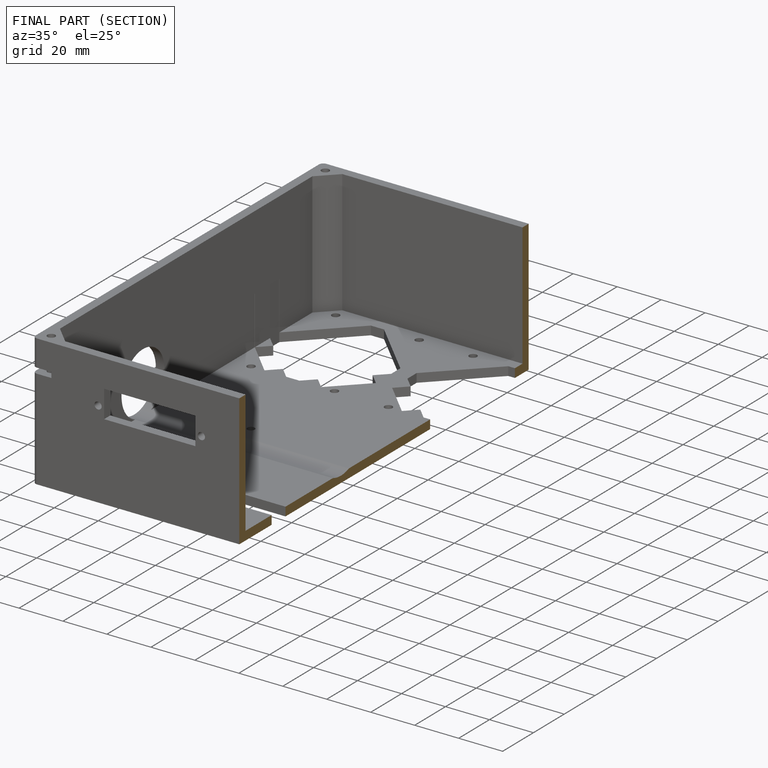
[diagram: finished part — half-section view (interior)]
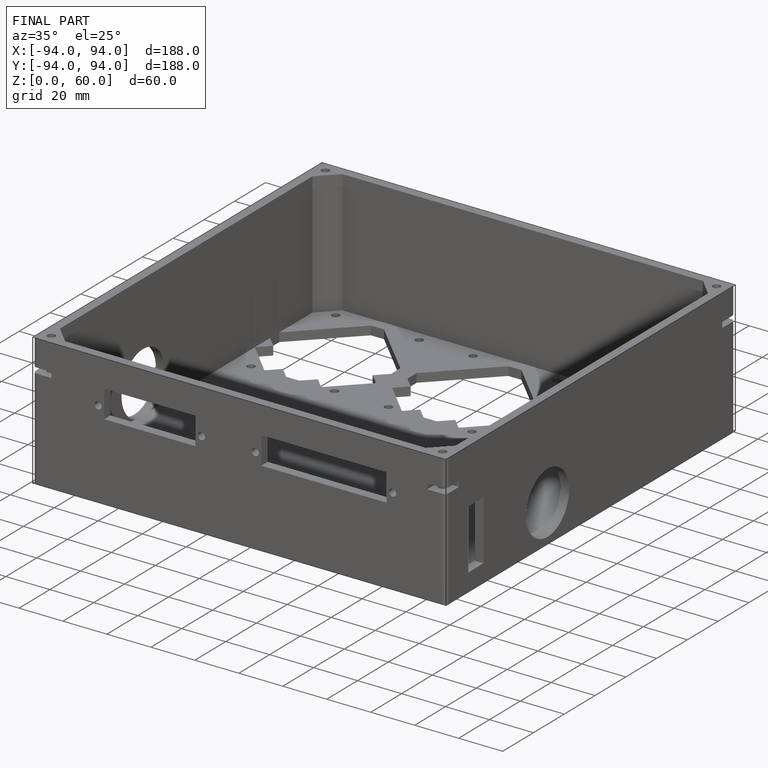
[diagram: finished part — iso view with bounding-box wireframe]
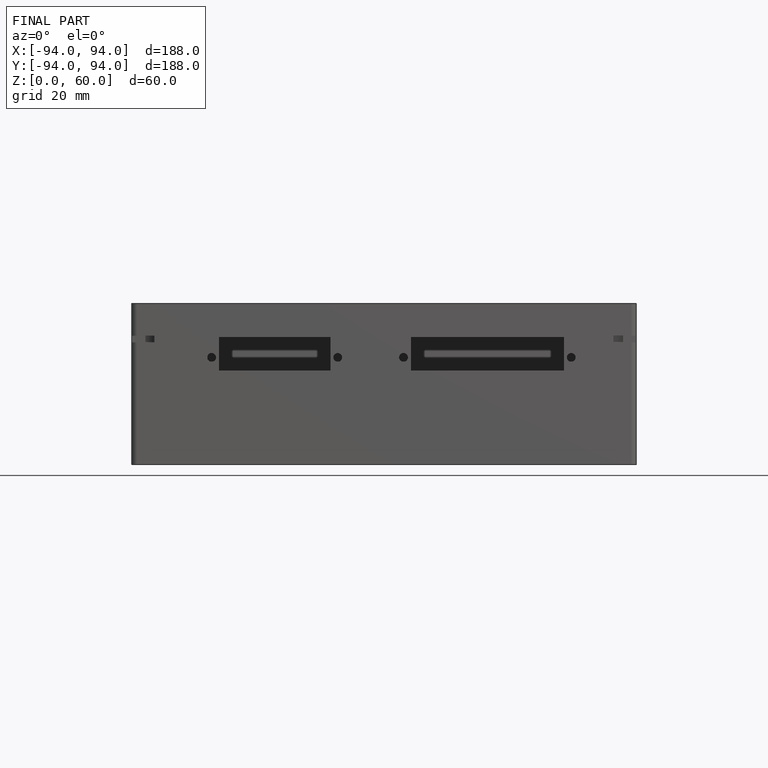
[diagram: finished part — front view with bounding-box wireframe]
